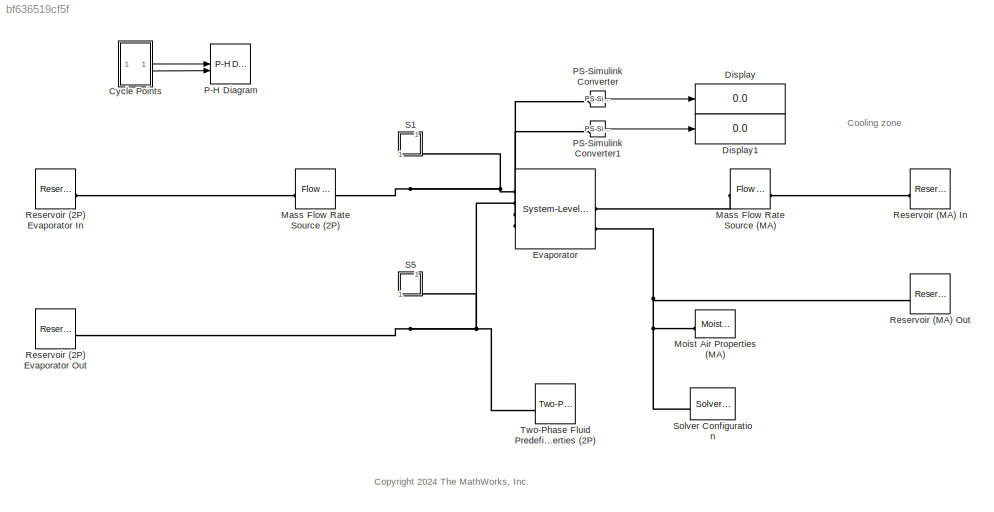
MODEL slx_bf636519cf5f
KIND model
CONFIG AbsTol = 1e-3
CONFIG EnableMultiTasking = off
CONFIG FixedStep = 0.1
CONFIG MaxStep = auto
CONFIG MinStep = auto
CONFIG RelTol = 1e-3
CONFIG SampleTimeConstraint = Unconstrained
CONFIG SolverName = daessc
CONFIG StartTime = 0
CONFIG StopTime = 1000
BLOCK [Reference]  Evaporator  REF=SimscapeFluids_lib/Fluid Network
Interfaces/Heat Exchangers/System-Level
Condenser Evaporator
(2P-MA)
  SourceBlock = SimscapeFluids_lib/Fluid Network\nInterfaces/Heat Exchangers/System-Level\nCondenser Evaporator\n(2P-MA)
  SourceType = System-Level\nCondenser Evaporator\n(2P-MA)
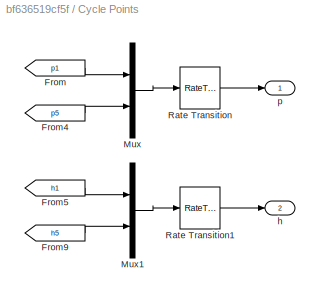
BLOCK [SubSystem] Cycle Points
BLOCK [From] Cycle Points/From
  GotoTag = p1
  TagVisibility = global
BLOCK [From] Cycle Points/From4
  GotoTag = p5
  TagVisibility = global
BLOCK [From] Cycle Points/From5
  GotoTag = h1
  TagVisibility = global
BLOCK [From] Cycle Points/From9
  GotoTag = h5
  TagVisibility = global
BLOCK [Mux] Cycle Points/Mux
  DisplayOption = bar
  Inputs = 2
BLOCK [Mux] Cycle Points/Mux1
  DisplayOption = bar
  Inputs = 2
BLOCK [RateTransition] Cycle Points/Rate Transition
  OutPortSampleTime = 10
BLOCK [RateTransition] Cycle Points/Rate Transition1
  OutPortSampleTime = 10
BLOCK [Outport] Cycle Points/h
  Port = 2
BLOCK [Outport] Cycle Points/p
BLOCK [Display] Display
  Decimation = 1
BLOCK [Display] Display1
  Decimation = 1
BLOCK [Reference] Mass Flow Rate Source (2P)  REF=fl_lib/Two-Phase Fluid/Sources/Flow Rate Source
(2P)
  AttributesFormatString = mass_flow= %<mass_flow>
  SourceBlock = fl_lib/Two-Phase Fluid/Sources/Flow Rate Source\n(2P)
  SourceType = Flow Rate Source\n(2P)
BLOCK [Reference] Mass Flow Rate Source (MA)  REF=fl_lib/Moist Air/Sources/Flow Rate Source
(MA)
  AttributesFormatString = mass_flow= %<mass_flow>
  SourceBlock = fl_lib/Moist Air/Sources/Flow Rate Source\n(MA)
  SourceType = Flow Rate Source\n(MA)
BLOCK [Reference] Moist Air Properties (MA)  REF=fl_lib/Moist Air/Utilities/Moist Air Properties
(MA)
  SourceBlock = fl_lib/Moist Air/Utilities/Moist Air Properties\n(MA)
  SourceType = Moist Air Properties\n(MA)
BLOCK [Reference] P-H Diagram  REF=SimscapeFluids_lib/Two-Phase Fluid/Utilities/P-H Diagram (2P)
  SourceBlock = SimscapeFluids_lib/Two-Phase Fluid/Utilities/P-H Diagram (2P)
  SourceType = P-H Diagram (2P)
  UserDataPersistent = on
BLOCK [Reference] PS-Simulink Converter  REF=nesl_utility/PS-Simulink
Converter
  AttributesFormatString = %<Unit>
  SourceBlock = nesl_utility/PS-Simulink\nConverter
  SourceType = PS-Simulink\nConverter
BLOCK [Reference] PS-Simulink Converter1  REF=nesl_utility/PS-Simulink
Converter
  AttributesFormatString = %<Unit>
  SourceBlock = nesl_utility/PS-Simulink\nConverter
  SourceType = PS-Simulink\nConverter
BLOCK [Reference] Reservoir (2P) Evaporator In  REF=fl_lib/Two-Phase Fluid/Elements/Reservoir (2P)
  AttributesFormatString = evaporating_temperature= %<reservoir_evaporating_temperature>\nreservoir_enthalpy= %<reservoir_enthalpy>
  SourceBlock = fl_lib/Two-Phase Fluid/Elements/Reservoir (2P)
  SourceType = Reservoir (2P)
BLOCK [Reference] Reservoir (2P) Evaporator Out  REF=fl_lib/Two-Phase Fluid/Elements/Reservoir (2P)
  AttributesFormatString = evaporating_temperature = %<reservoir_evaporating_temperature>\nsuperheating= %<reservoir_superheating>
  SourceBlock = fl_lib/Two-Phase Fluid/Elements/Reservoir (2P)
  SourceType = Reservoir (2P)
BLOCK [Reference] Reservoir (MA) In  REF=fl_lib/Moist Air/Elements/Reservoir (MA)
  AttributesFormatString = temperature= %<reservoir_temperature>
  SourceBlock = fl_lib/Moist Air/Elements/Reservoir (MA)
  SourceType = Reservoir (MA)
BLOCK [Reference] Reservoir (MA) Out  REF=fl_lib/Moist Air/Elements/Reservoir (MA)
  AttributesFormatString = temperature= %<reservoir_temperature>
  SourceBlock = fl_lib/Moist Air/Elements/Reservoir (MA)
  SourceType = Reservoir (MA)
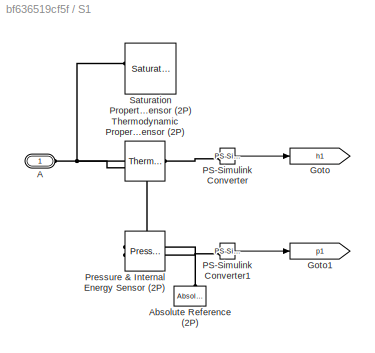
BLOCK [SubSystem] S1
  NameLocation = right
BLOCK [PMIOPort] S1/A
  Side = Left
BLOCK [Reference] S1/Absolute Reference (2P)  REF=fl_lib/Two-Phase Fluid/Elements/Absolute Reference
(2P)
  NameLocation = right
  SourceBlock = fl_lib/Two-Phase Fluid/Elements/Absolute Reference\n(2P)
  SourceType = Absolute Reference\n(2P)
BLOCK [Goto] S1/Goto
  GotoTag = h1
  TagVisibility = global
BLOCK [Goto] S1/Goto1
  GotoTag = p1
  TagVisibility = global
BLOCK [Reference] S1/PS-Simulink Converter  REF=nesl_utility/PS-Simulink
Converter
  SourceBlock = nesl_utility/PS-Simulink\nConverter
  SourceType = PS-Simulink\nConverter
BLOCK [Reference] S1/PS-Simulink Converter1  REF=nesl_utility/PS-Simulink
Converter
  SourceBlock = nesl_utility/PS-Simulink\nConverter
  SourceType = PS-Simulink\nConverter
BLOCK [Reference] S1/Pressure & Internal Energy Sensor (2P)  REF=fl_lib/Two-Phase Fluid/Sensors/Pressure,
Temperature &
Internal Energy
Sensor (2P)
  SourceBlock = fl_lib/Two-Phase Fluid/Sensors/Pressure,\nTemperature &\nInternal Energy\nSensor (2P)
  SourceType = Pressure,\nTemperature &\nInternal Energy\nSensor (2P)
BLOCK [Reference] S1/Saturation Properties Sensor (2P)  REF=fl_lib/Two-Phase Fluid/Sensors/Saturation
Properties Sensor
(2P)
  SourceBlock = fl_lib/Two-Phase Fluid/Sensors/Saturation\nProperties Sensor\n(2P)
  SourceType = Saturation\nProperties Sensor\n(2P)
BLOCK [Reference] S1/Thermodynamic Properties Sensor (2P)  REF=fl_lib/Two-Phase Fluid/Sensors/Thermodynamic
Properties Sensor
(2P)
  SourceBlock = fl_lib/Two-Phase Fluid/Sensors/Thermodynamic\nProperties Sensor\n(2P)
  SourceType = Thermodynamic\nProperties Sensor\n(2P)
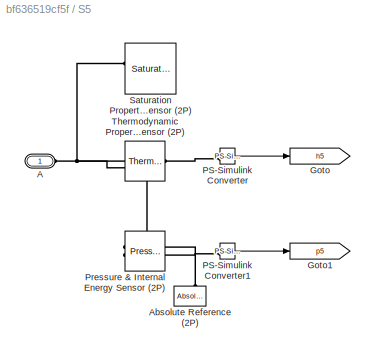
BLOCK [SubSystem] S5
  NameLocation = right
BLOCK [PMIOPort] S5/A
  Side = Left
BLOCK [Reference] S5/Absolute Reference (2P)  REF=fl_lib/Two-Phase Fluid/Elements/Absolute Reference
(2P)
  NameLocation = right
  SourceBlock = fl_lib/Two-Phase Fluid/Elements/Absolute Reference\n(2P)
  SourceType = Absolute Reference\n(2P)
BLOCK [Goto] S5/Goto
  GotoTag = h5
  TagVisibility = global
BLOCK [Goto] S5/Goto1
  GotoTag = p5
  TagVisibility = global
BLOCK [Reference] S5/PS-Simulink Converter  REF=nesl_utility/PS-Simulink
Converter
  SourceBlock = nesl_utility/PS-Simulink\nConverter
  SourceType = PS-Simulink\nConverter
BLOCK [Reference] S5/PS-Simulink Converter1  REF=nesl_utility/PS-Simulink
Converter
  SourceBlock = nesl_utility/PS-Simulink\nConverter
  SourceType = PS-Simulink\nConverter
BLOCK [Reference] S5/Pressure & Internal Energy Sensor (2P)  REF=fl_lib/Two-Phase Fluid/Sensors/Pressure,
Temperature &
Internal Energy
Sensor (2P)
  SourceBlock = fl_lib/Two-Phase Fluid/Sensors/Pressure,\nTemperature &\nInternal Energy\nSensor (2P)
  SourceType = Pressure,\nTemperature &\nInternal Energy\nSensor (2P)
BLOCK [Reference] S5/Saturation Properties Sensor (2P)  REF=fl_lib/Two-Phase Fluid/Sensors/Saturation
Properties Sensor
(2P)
  SourceBlock = fl_lib/Two-Phase Fluid/Sensors/Saturation\nProperties Sensor\n(2P)
  SourceType = Saturation\nProperties Sensor\n(2P)
BLOCK [Reference] S5/Thermodynamic Properties Sensor (2P)  REF=fl_lib/Two-Phase Fluid/Sensors/Thermodynamic
Properties Sensor
(2P)
  SourceBlock = fl_lib/Two-Phase Fluid/Sensors/Thermodynamic\nProperties Sensor\n(2P)
  SourceType = Thermodynamic\nProperties Sensor\n(2P)
BLOCK [Reference] Solver Configuration  REF=nesl_utility/Solver
Configuration
  SourceBlock = nesl_utility/Solver\nConfiguration
  SourceType = Solver\nConfiguration
BLOCK [Reference] Two-Phase Fluid Predefined Properties (2P)  REF=SimscapeFluids_lib/Two-Phase Fluid/Utilities/Two-Phase Fluid
Predefined
Properties (2P)
  SourceBlock = SimscapeFluids_lib/Two-Phase Fluid/Utilities/Two-Phase Fluid\nPredefined\nProperties (2P)
  SourceType = Two-Phase Fluid\nPredefined\nProperties (2P)
ANNOTATION (root): <copyright redacted>
ANNOTATION (root): Cooling zone
LINE Cycle Points/From4:1 -> Cycle Points/Mux:2
LINE Cycle Points/From5:1 -> Cycle Points/Mux1:1
LINE Cycle Points/From9:1 -> Cycle Points/Mux1:2
LINE Cycle Points/From:1 -> Cycle Points/Mux:1
LINE Cycle Points/Mux1:1 -> Cycle Points/Rate Transition1:1
LINE Cycle Points/Mux:1 -> Cycle Points/Rate Transition:1
LINE Cycle Points/Rate Transition1:1 -> Cycle Points/h:1
LINE Cycle Points/Rate Transition:1 -> Cycle Points/p:1
LINE Cycle Points:1 -> P-H Diagram:1
LINE Cycle Points:2 -> P-H Diagram:2
LINE PS-Simulink Converter1:1 -> Display1:1
LINE PS-Simulink Converter:1 -> Display:1
LINE S1/PS-Simulink Converter1:1 -> S1/Goto1:1
LINE S1/PS-Simulink Converter:1 -> S1/Goto:1
LINE S5/PS-Simulink Converter1:1 -> S5/Goto1:1
LINE S5/PS-Simulink Converter:1 -> S5/Goto:1
PNET net1:  Evaporator:LConn1 -- Mass Flow Rate Source (2P):RConn1 -- S1:LConn1
PNET net2:  Evaporator:LConn2 -- Reservoir (2P) Evaporator Out:LConn1 -- S5:LConn1 -- Two-Phase Fluid Predefined Properties (2P):RConn1
PLINE  Evaporator:LConn3 -- PS-Simulink Converter:LConn1
PLINE  Evaporator:LConn4 -- PS-Simulink Converter1:LConn1
PLINE  Evaporator:RConn1 -- Mass Flow Rate Source (MA):RConn1
PNET net3:  Evaporator:RConn2 -- Moist Air Properties (MA):RConn1 -- Reservoir (MA) Out:LConn1 -- Solver Configuration:RConn1
PLINE Mass Flow Rate Source (2P):LConn1 -- Reservoir (2P) Evaporator In:LConn1
PLINE Mass Flow Rate Source (MA):LConn1 -- Reservoir (MA) In:LConn1
PNET net4: S1/A:RConn1 -- S1/Pressure & Internal Energy Sensor (2P):LConn1 -- S1/Saturation Properties Sensor (2P):LConn1 -- S1/Thermodynamic Properties Sensor (2P):LConn1
PLINE S1/Absolute Reference (2P):LConn1 -- S1/Pressure & Internal Energy Sensor (2P):RConn1
PLINE S1/PS-Simulink Converter1:LConn1 -- S1/Pressure & Internal Energy Sensor (2P):RConn2
PLINE S1/PS-Simulink Converter:LConn1 -- S1/Thermodynamic Properties Sensor (2P):RConn2
PNET net5: S5/A:RConn1 -- S5/Pressure & Internal Energy Sensor (2P):LConn1 -- S5/Saturation Properties Sensor (2P):LConn1 -- S5/Thermodynamic Properties Sensor (2P):LConn1
PLINE S5/Absolute Reference (2P):LConn1 -- S5/Pressure & Internal Energy Sensor (2P):RConn1
PLINE S5/PS-Simulink Converter1:LConn1 -- S5/Pressure & Internal Energy Sensor (2P):RConn2
PLINE S5/PS-Simulink Converter:LConn1 -- S5/Thermodynamic Properties Sensor (2P):RConn2
note: PNET lines group multi-terminal physical nets as a canonical sorted terminal list (undirected conserving connections); 2-terminal nets keep the pairwise PLINE form
